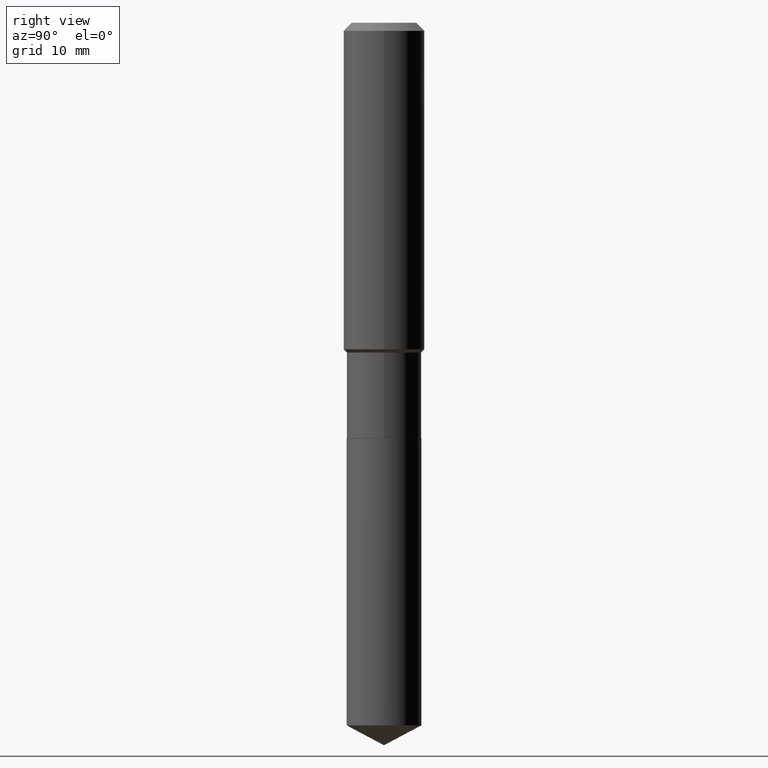
[diagram: clean part render]
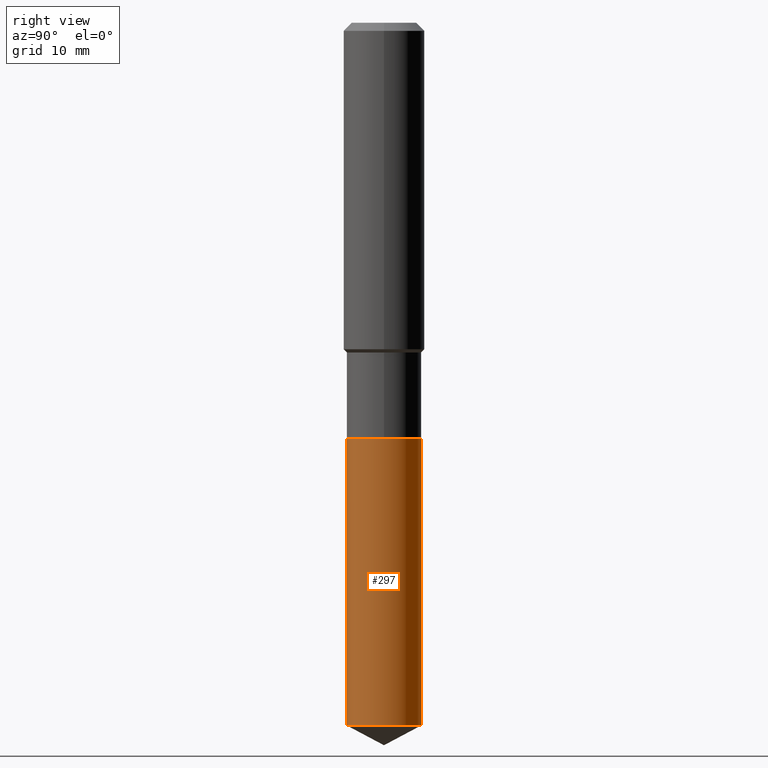
[diagram: same view with one face highlighted and labeled with its STEP entity id]
A machine part, right view. The second image highlights one B-rep face of the part: STEP entity #297.
In plain terms, the highlighted cylindrical surface (partial cylindrical patch) has radius 4.5999 mm, axis along (-0, 0, 1).
Its self-contained STEP definition (entity closure, byte-faithful):
#12 = CARTESIAN_POINT ( 'NONE',  ( 4.929331472627379200E-29, -7.037778934706127955E-15, -2.015699999999999825 ) ) ;
#18 = EDGE_CURVE ( 'NONE', #238, #369, #138, .T. ) ;
#29 = EDGE_CURVE ( 'NONE', #369, #291, #222, .T. ) ;
#37 = CARTESIAN_POINT ( 'NONE',  ( 1.286792894461624739E-15, 0.1810999999999929888, -2.015700000000000269 ) ) ;
#44 = DIRECTION ( 'NONE',  ( -2.445517173023841322E-29, 3.491412074777250618E-15, 1.000000000000000000 ) ) ;
#49 = AXIS2_PLACEMENT_3D ( 'NONE', #12, #44, #228 ) ;
#60 = ORIENTED_EDGE ( 'NONE', *, *, #29, .T. ) ;
#80 = VECTOR ( 'NONE', #226, 39.37007874015748143 ) ;
#104 = DIRECTION ( 'NONE',  ( -2.445517173023841322E-29, 3.491412074777250618E-15, 1.000000000000000000 ) ) ;
#112 = DIRECTION ( 'NONE',  ( -6.982962677686266711E-15, -1.000000000000000000, 3.016949744521549444E-15 ) ) ;
#138 = CIRCLE ( 'NONE', #166, 0.1811000000000000110 ) ;
#159 = CARTESIAN_POINT ( 'NONE',  ( -1.264614540928933635E-15, -0.1811000000000070609, -2.015699999999999381 ) ) ;
#165 = CARTESIAN_POINT ( 'NONE',  ( -1.264614540928933635E-15, -0.1811000000000070609, -2.015699999999999381 ) ) ;
#166 = AXIS2_PLACEMENT_3D ( 'NONE', #448, #104, #259 ) ;
#169 = ORIENTED_EDGE ( 'NONE', *, *, #355, .F. ) ;
#178 = DIRECTION ( 'NONE',  ( -2.445517173023841322E-29, 3.491412074777250618E-15, 1.000000000000000000 ) ) ;
#218 = AXIS2_PLACEMENT_3D ( 'NONE', #377, #339, #112 ) ;
#222 = LINE ( 'NONE', #372, #289 ) ;
#226 = DIRECTION ( 'NONE',  ( -2.445517173023841322E-29, 3.491412074777250618E-15, 1.000000000000000000 ) ) ;
#228 = DIRECTION ( 'NONE',  ( -6.982962677686266711E-15, -1.000000000000000000, 3.016949744521549444E-15 ) ) ;
#236 = LINE ( 'NONE', #159, #80 ) ;
#238 = VERTEX_POINT ( 'NONE', #282 ) ;
#259 = DIRECTION ( 'NONE',  ( -6.982962677686266711E-15, -1.000000000000000000, 3.016949744521549444E-15 ) ) ;
#269 = CYLINDRICAL_SURFACE ( 'NONE', #49, 0.1811000000000000110 ) ;
#282 = CARTESIAN_POINT ( 'NONE',  ( -1.264614540928899714E-15, -0.1811000000000118904, -3.407607421926106106 ) ) ;
#285 = VERTEX_POINT ( 'NONE', #165 ) ;
#289 = VECTOR ( 'NONE', #178, 39.37007874015748143 ) ;
#291 = VERTEX_POINT ( 'NONE', #37 ) ;
#297 = ADVANCED_FACE ( 'NONE', ( #383 ), #269, .T. ) ;
#339 = DIRECTION ( 'NONE',  ( -2.445517173023841322E-29, 3.491412074777250618E-15, 1.000000000000000000 ) ) ;
#355 = EDGE_CURVE ( 'NONE', #238, #285, #236, .T. ) ;
#359 = ORIENTED_EDGE ( 'NONE', *, *, #18, .T. ) ;
#369 = VERTEX_POINT ( 'NONE', #389 ) ;
#372 = CARTESIAN_POINT ( 'NONE',  ( 1.286792894461590621E-15, 0.1810999999999929888, -2.015700000000000269 ) ) ;
#377 = CARTESIAN_POINT ( 'NONE',  ( 4.929331472627379200E-29, -7.037778934706127955E-15, -2.015699999999999825 ) ) ;
#383 = FACE_OUTER_BOUND ( 'NONE', #442, .T. ) ;
#384 = CIRCLE ( 'NONE', #218, 0.1811000000000000110 ) ;
#389 = CARTESIAN_POINT ( 'NONE',  ( 1.286792894461624542E-15, 0.1810999999999881316, -3.407607421926107438 ) ) ;
#394 = ORIENTED_EDGE ( 'NONE', *, *, #449, .F. ) ;
#442 = EDGE_LOOP ( 'NONE', ( #359, #60, #394, #169 ) ) ;
#448 = CARTESIAN_POINT ( 'NONE',  ( 8.333264976207015123E-29, -1.189750131459101143E-14, -3.407607421926106994 ) ) ;
#449 = EDGE_CURVE ( 'NONE', #285, #291, #384, .T. ) ;